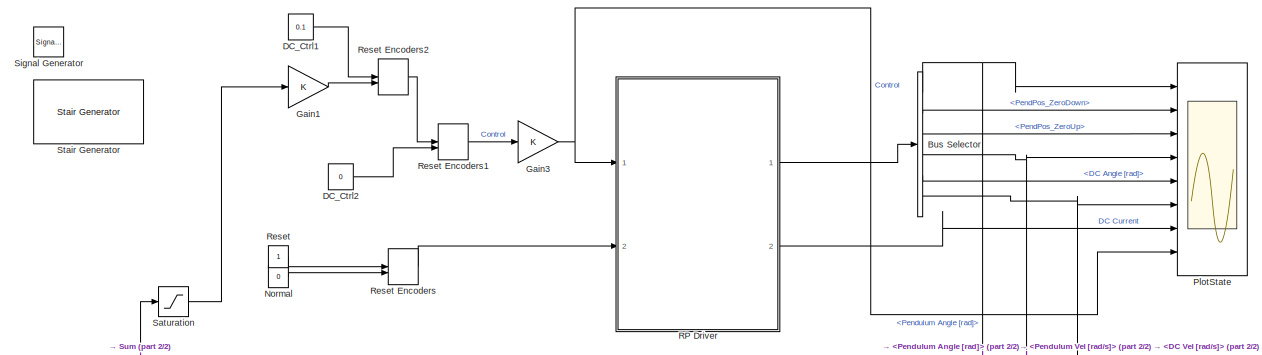
[diagram: root canvas - part 1/2, full width, top band]
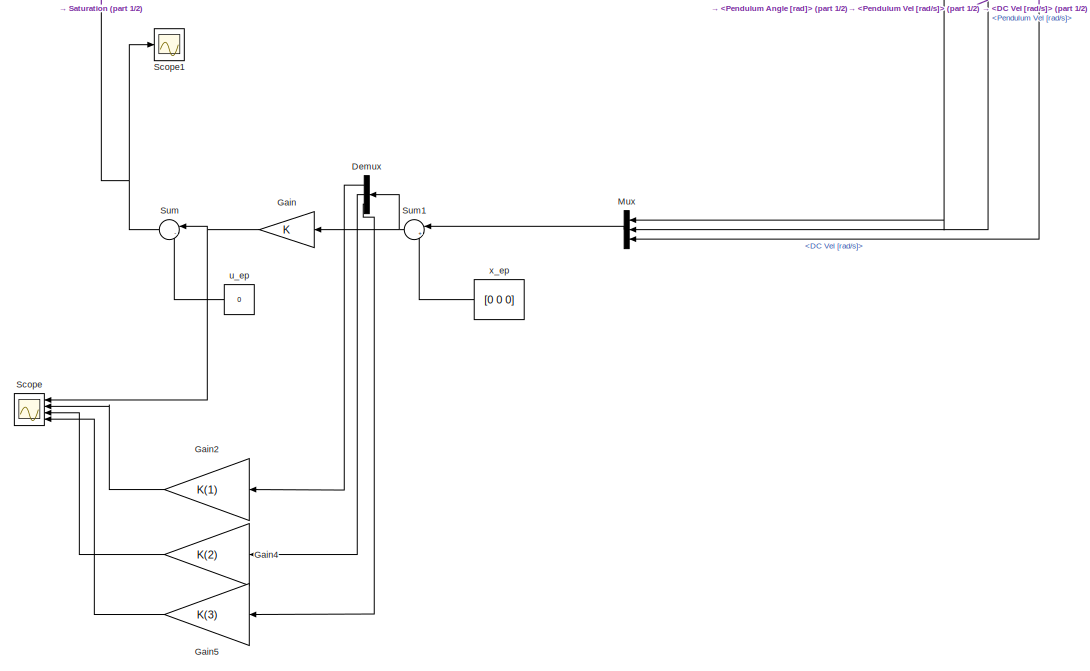
[diagram: root canvas - part 2/2, full width, bottom band]
MODEL slx_e11b59d780dd
KIND model
CONFIG AbsTol = auto
CONFIG EnableMultiTasking = on
CONFIG FixedStep = 0.01
CONFIG MaxStep = auto
CONFIG MinStep = auto
CONFIG RelTol = 1e-3
CONFIG SampleTimeConstraint = Unconstrained
CONFIG Solver = FixedStepDiscrete
CONFIG SolverName = FixedStepDiscrete
CONFIG StartTime = 0.0
CONFIG StopTime = 999
BLOCK [BusSelector] Bus Selector
  OutputAsBus = off
  OutputSignals = Pendulum Angle [rad],PendPos_ZeroDown,PendPos_ZeroUp,Pendulum Vel [rad/s],DC Angle [rad],DC Vel [rad/s]
  Ports = [1, 6]
BLOCK [Constant] DC_Ctrl1
  Value = 0.1
BLOCK [Constant] DC_Ctrl2
  Value = 0
BLOCK [Demux] Demux
  DisplayOption = bar
  Outputs = 3
  Ports = [1, 3]
BLOCK [Gain] Gain
  Gain = K
  Multiplication = Matrix(K*u) (u vector)
  OutDataTypeStr = Inherit: Inherit via internal rule
  ParamDataTypeStr = Inherit: Inherit via internal rule
  SaturateOnIntegerOverflow = off
BLOCK [Gain] Gain1
  OutDataTypeStr = Inherit: Inherit via internal rule
  ParamDataTypeStr = Inherit: Inherit via internal rule
  SaturateOnIntegerOverflow = off
BLOCK [Gain] Gain2
  Gain = K(1)
  OutDataTypeStr = Inherit: Inherit via internal rule
  ParamDataTypeStr = Inherit: Inherit via internal rule
  SaturateOnIntegerOverflow = off
BLOCK [Gain] Gain3
  OutDataTypeStr = Inherit: Inherit via internal rule
  ParamDataTypeStr = Inherit: Inherit via internal rule
  SaturateOnIntegerOverflow = off
BLOCK [Gain] Gain4
  Gain = K(2)
  OutDataTypeStr = Inherit: Inherit via internal rule
  ParamDataTypeStr = Inherit: Inherit via internal rule
  SaturateOnIntegerOverflow = off
BLOCK [Gain] Gain5
  Gain = K(3)
  OutDataTypeStr = Inherit: Inherit via internal rule
  ParamDataTypeStr = Inherit: Inherit via internal rule
  SaturateOnIntegerOverflow = off
BLOCK [Mux] Mux
  DisplayOption = bar
  Inputs = 3
  Ports = [3, 1]
BLOCK [Constant] Normal
  Value = 0
BLOCK [Scope] PlotState
  Floating = off
  NumInputPorts = 8
  Ports = [8]
  ScopeSpecificationString = Simulink.scopes.TimeScopeBlockCfg('CurrentConfiguration', extmgr.ConfigurationSet(extmgr.Configuration('Core','General UI',true),extmgr.Configuration('Core','Source UI',true),extmgr.Configuration('Sources','WiredSimulink',true,'DataLoggingVariableName','test6_wahadlo_pionowe','DataLoggingSaveFormat','StructureWithTime','DataLoggingMaxPoints','12000','DataLoggingDecimation','1','DataLoggingDecimate...<+5769ch>
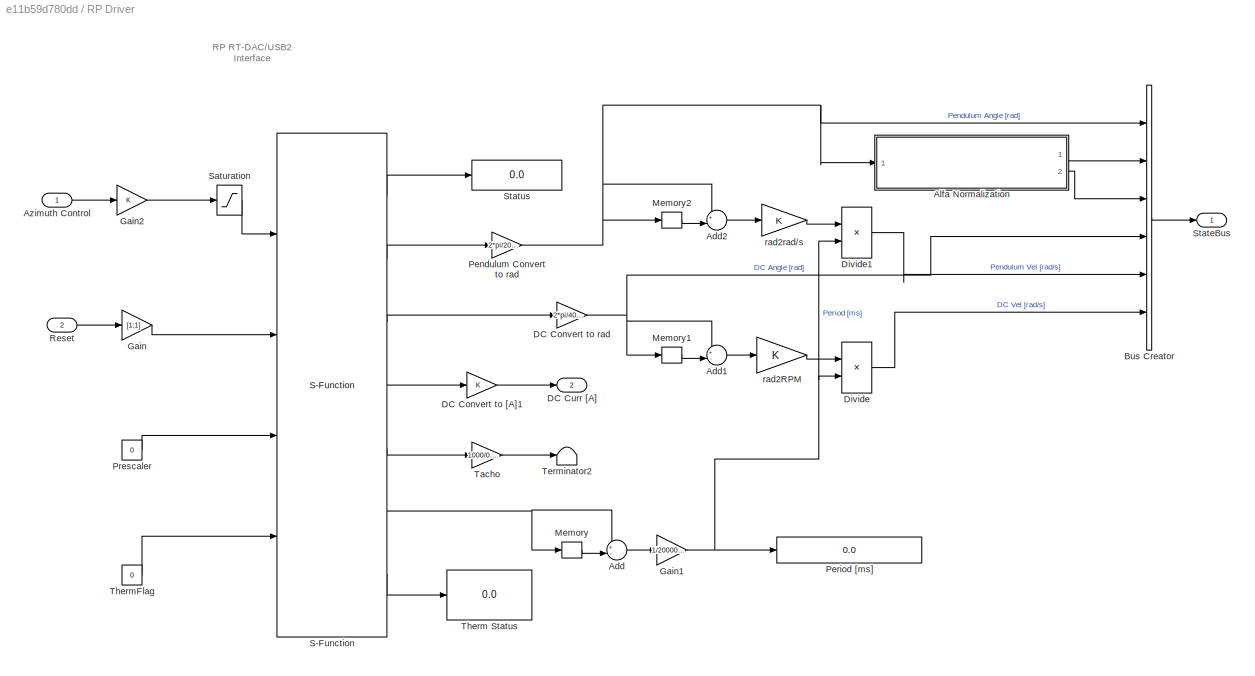
BLOCK [SubSystem] RP Driver
  Ports = [2, 2]
  RequestExecContextInheritance = off
BLOCK [Sum] RP Driver/Add
  IconShape = round
  InputSameDT = off
  Inputs = +-|
  OutDataTypeStr = Inherit: Inherit via internal rule
  Ports = [2, 1]
  SaturateOnIntegerOverflow = off
BLOCK [Sum] RP Driver/Add1
  IconShape = round
  InputSameDT = off
  Inputs = +-|
  OutDataTypeStr = Inherit: Inherit via internal rule
  Ports = [2, 1]
  SaturateOnIntegerOverflow = off
BLOCK [Sum] RP Driver/Add2
  IconShape = round
  InputSameDT = off
  Inputs = +-|
  OutDataTypeStr = Inherit: Inherit via internal rule
  Ports = [2, 1]
  SaturateOnIntegerOverflow = off
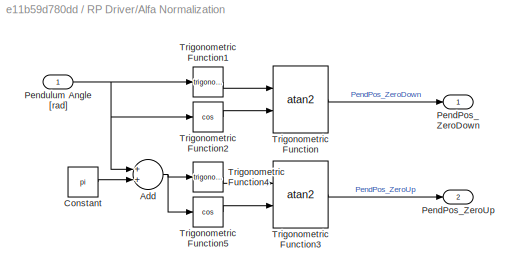
BLOCK [SubSystem] RP Driver/Alfa Normalization
  Ports = [1, 2]
  RequestExecContextInheritance = off
BLOCK [Sum] RP Driver/Alfa Normalization/Add
  InputSameDT = off
  OutDataTypeStr = Inherit: Inherit via internal rule
  Ports = [2, 1]
  SaturateOnIntegerOverflow = off
BLOCK [Constant] RP Driver/Alfa Normalization/Constant
  Value = pi
BLOCK [Outport] RP Driver/Alfa Normalization/PendPos_ZeroDown
  IconDisplay = Port number
BLOCK [Outport] RP Driver/Alfa Normalization/PendPos_ZeroUp
  IconDisplay = Port number
  Port = 2
BLOCK [Inport] RP Driver/Alfa Normalization/Pendulum Angle [rad]
  IconDisplay = Port number
BLOCK [Trigonometry] RP Driver/Alfa Normalization/Trigonometric Function
  Operator = atan2
  Ports = [2, 1]
BLOCK [Trigonometry] RP Driver/Alfa Normalization/Trigonometric Function1
  Ports = [1, 1]
BLOCK [Trigonometry] RP Driver/Alfa Normalization/Trigonometric Function2
  Operator = cos
  Ports = [1, 1]
BLOCK [Trigonometry] RP Driver/Alfa Normalization/Trigonometric Function3
  Operator = atan2
  Ports = [2, 1]
BLOCK [Trigonometry] RP Driver/Alfa Normalization/Trigonometric Function4
  Ports = [1, 1]
BLOCK [Trigonometry] RP Driver/Alfa Normalization/Trigonometric Function5
  Operator = cos
  Ports = [1, 1]
BLOCK [Inport] RP Driver/Azimuth Control
  IconDisplay = Port number
BLOCK [BusCreator] RP Driver/Bus Creator
  DisplayOption = bar
  InheritFromInputs = on
  Inputs = 6
  Ports = [6, 1]
BLOCK [Gain] RP Driver/DC Convert to [A]1
BLOCK [Gain] RP Driver/DC Convert to rad
  Gain = 2*pi/4096
BLOCK [Outport] RP Driver/DC Curr [A]
  IconDisplay = Port number
  Port = 2
BLOCK [Product] RP Driver/Divide
  InputSameDT = off
  Inputs = */
  OutDataTypeStr = Inherit: Inherit via internal rule
  Ports = [2, 1]
  RndMeth = Floor
  SaturateOnIntegerOverflow = off
BLOCK [Product] RP Driver/Divide1
  InputSameDT = off
  Inputs = */
  OutDataTypeStr = Inherit: Inherit via internal rule
  Ports = [2, 1]
  RndMeth = Floor
  SaturateOnIntegerOverflow = off
BLOCK [Gain] RP Driver/Gain
  Gain = [1;1]
  OutDataTypeStr = Inherit: Inherit via internal rule
  ParamDataTypeStr = Inherit: Inherit via internal rule
  SaturateOnIntegerOverflow = off
BLOCK [Gain] RP Driver/Gain1
  Gain = 1/20000000
  OutDataTypeStr = Inherit: Inherit via internal rule
  ParamDataTypeStr = Inherit: Inherit via internal rule
  SaturateOnIntegerOverflow = off
BLOCK [Gain] RP Driver/Gain2
  OutDataTypeStr = Inherit: Inherit via internal rule
  ParamDataTypeStr = Inherit: Inherit via internal rule
  SaturateOnIntegerOverflow = off
BLOCK [Memory] RP Driver/Memory
BLOCK [Memory] RP Driver/Memory1
BLOCK [Memory] RP Driver/Memory2
BLOCK [Gain] RP Driver/Pendulum Convert to rad
  Gain = 2*pi/20000
BLOCK [Display] RP Driver/Period [ms]
  Decimation = 1
  Format = long
  Ports = [1]
BLOCK [Constant] RP Driver/Prescaler
  Value = 0
BLOCK [Inport] RP Driver/Reset
  IconDisplay = Port number
  Port = 2
BLOCK [S-Function] RP Driver/S-Function
  EnableBusSupport = off
  FunctionName = rtdacusb2_rpend_dd
  Parameters = 1, 0.01
  Ports = [4, 7]
  SFcnIsStateOwnerBlock = off
  SFunctionDeploymentMode = off
BLOCK [Saturate] RP Driver/Saturation
  InputPortMap = u0
  LowerLimit = -1
  Ports = [1, 1]
  UpperLimit = 1
BLOCK [Outport] RP Driver/StateBus
  IconDisplay = Port number
BLOCK [Display] RP Driver/Status
  Decimation = 1
  Ports = [1]
BLOCK [Gain] RP Driver/Tacho
  Gain = 1000/0.52
BLOCK [Terminator] RP Driver/Terminator2
BLOCK [Display] RP Driver/Therm Status
  Decimation = 1
  Ports = [1]
BLOCK [Constant] RP Driver/ThermFlag
  Value = 0
BLOCK [Gain] RP Driver/rad2RPM
BLOCK [Gain] RP Driver/rad2rad//s
BLOCK [Constant] Reset
BLOCK [ManualSwitch] Reset Encoders
  CurrentSetting = 0
BLOCK [ManualSwitch] Reset Encoders1
BLOCK [ManualSwitch] Reset Encoders2
  CurrentSetting = 0
BLOCK [Saturate] Saturation
  InputPortMap = u0
  LowerLimit = -0.9
  Ports = [1, 1]
  UpperLimit = 0.9
BLOCK [Scope] Scope
  Floating = off
  NumInputPorts = 4
  Ports = [4]
  ScopeSpecificationString = Simulink.scopes.TimeScopeBlockCfg('CurrentConfiguration', extmgr.ConfigurationSet(extmgr.Configuration('Core','General UI',true),extmgr.Configuration('Core','Source UI',true),extmgr.Configuration('Sources','WiredSimulink',true,'DataLoggingVariableName','test_6_wahadlo_pionowe','DataLogging',true,'DataLoggingSaveFormat','StructureWithTime'),extmgr.Configuration('Visuals','Time Domain',true,'Seriali...<+3505ch>
BLOCK [Scope] Scope1
  Floating = off
  NumInputPorts = 1
  Ports = [1]
  ScopeSpecificationString = Simulink.scopes.TimeScopeBlockCfg('CurrentConfiguration', extmgr.ConfigurationSet(extmgr.Configuration('Core','General UI',true),extmgr.Configuration('Core','Source UI',true),extmgr.Configuration('Sources','WiredSimulink',true,'DataLoggingVariableName','ScopeData2'),extmgr.Configuration('Visuals','Time Domain',true,'SerializedDisplays',{struct('MinYLimReal','-10142.089','MaxYLimReal','1158.57533',...<+1436ch>
BLOCK [SignalGenerator] Signal Generator
  Amplitude = 0.25
  Frequency = 1/9
  Ports = [0, 1]
  WaveForm = square
BLOCK [Reference] Stair Generator  REF=powerlib_meascontrol/Pulse & Signal
Generators/Stair
Generator
  Commented = on
  Ports = [0, 1]
  SourceBlock = powerlib_meascontrol/Pulse & Signal\nGenerators/Stair\nGenerator
  SourceProductBaseCode = PS
  SourceType = Stair Generator
BLOCK [Sum] Sum
  IconShape = round
  InputSameDT = off
  Inputs = |-+
  OutDataTypeStr = Inherit: Inherit via internal rule
  Ports = [2, 1]
  SaturateOnIntegerOverflow = off
BLOCK [Sum] Sum1
  IconShape = round
  InputSameDT = off
  Inputs = |+-
  OutDataTypeStr = Inherit: Inherit via internal rule
  Ports = [2, 1]
  SaturateOnIntegerOverflow = off
BLOCK [Constant] u_ep
  Value = 0
BLOCK [Constant] x_ep
  Value = [0 0 0]
ANNOTATION RP Driver: RP RT-DAC/USB2 Interface
NET Bus Selector:1 -> Mux:1, PlotState:1
LINE Bus Selector:2 -> PlotState:2
LINE Bus Selector:3 -> PlotState:3
NET Bus Selector:4 -> Mux:2, PlotState:4
LINE Bus Selector:5 -> PlotState:5
NET Bus Selector:6 -> Mux:3, PlotState:6
LINE DC_Ctrl1:1 -> Reset Encoders2:1
LINE DC_Ctrl2:1 -> Reset Encoders1:2
LINE Demux:1 -> Gain2:1
LINE Demux:2 -> Gain4:1
LINE Demux:3 -> Gain5:1
LINE Gain1:1 -> Reset Encoders2:2
LINE Gain2:1 -> Scope:2
NET Gain3:1 -> PlotState:8, RP Driver:1
LINE Gain4:1 -> Scope:3
LINE Gain5:1 -> Scope:4
NET Gain:1 -> Scope:1, Sum:1
LINE Mux:1 -> Sum1:1
LINE Normal:1 -> Reset Encoders:2
LINE RP Driver/Add1:1 -> RP Driver/rad2RPM:1
LINE RP Driver/Add2:1 -> RP Driver/rad2rad//s:1
LINE RP Driver/Add:1 -> RP Driver/Gain1:1
NET RP Driver/Alfa Normalization/Add:1 -> RP Driver/Alfa Normalization/Trigonometric Function4:1, RP Driver/Alfa Normalization/Trigonometric Function5:1
LINE RP Driver/Alfa Normalization/Constant:1 -> RP Driver/Alfa Normalization/Add:2
NET RP Driver/Alfa Normalization/Pendulum Angle [rad]:1 -> RP Driver/Alfa Normalization/Add:1, RP Driver/Alfa Normalization/Trigonometric Function1:1, RP Driver/Alfa Normalization/Trigonometric Function2:1
LINE RP Driver/Alfa Normalization/Trigonometric Function1:1 -> RP Driver/Alfa Normalization/Trigonometric Function:1
LINE RP Driver/Alfa Normalization/Trigonometric Function2:1 -> RP Driver/Alfa Normalization/Trigonometric Function:2
LINE RP Driver/Alfa Normalization/Trigonometric Function3:1 -> RP Driver/Alfa Normalization/PendPos_ZeroUp:1
LINE RP Driver/Alfa Normalization/Trigonometric Function4:1 -> RP Driver/Alfa Normalization/Trigonometric Function3:1
LINE RP Driver/Alfa Normalization/Trigonometric Function5:1 -> RP Driver/Alfa Normalization/Trigonometric Function3:2
LINE RP Driver/Alfa Normalization/Trigonometric Function:1 -> RP Driver/Alfa Normalization/PendPos_ZeroDown:1
LINE RP Driver/Alfa Normalization:1 -> RP Driver/Bus Creator:2
LINE RP Driver/Alfa Normalization:2 -> RP Driver/Bus Creator:3
LINE RP Driver/Azimuth Control:1 -> RP Driver/Gain2:1
LINE RP Driver/Bus Creator:1 -> RP Driver/StateBus:1
LINE RP Driver/DC Convert to [A]1:1 -> RP Driver/DC Curr [A]:1
NET RP Driver/DC Convert to rad:1 -> RP Driver/Add1:1, RP Driver/Bus Creator:4, RP Driver/Memory1:1
LINE RP Driver/Divide1:1 -> RP Driver/Bus Creator:5
LINE RP Driver/Divide:1 -> RP Driver/Bus Creator:6
NET RP Driver/Gain1:1 -> RP Driver/Divide1:2, RP Driver/Divide:2, RP Driver/Period [ms]:1
LINE RP Driver/Gain2:1 -> RP Driver/Saturation:1
LINE RP Driver/Gain:1 -> RP Driver/S-Function:2
LINE RP Driver/Memory1:1 -> RP Driver/Add1:2
LINE RP Driver/Memory2:1 -> RP Driver/Add2:2
LINE RP Driver/Memory:1 -> RP Driver/Add:2
NET RP Driver/Pendulum Convert to rad:1 -> RP Driver/Add2:1, RP Driver/Alfa Normalization:1, RP Driver/Bus Creator:1, RP Driver/Memory2:1
LINE RP Driver/Prescaler:1 -> RP Driver/S-Function:3
LINE RP Driver/Reset:1 -> RP Driver/Gain:1
LINE RP Driver/S-Function:1 -> RP Driver/Status:1
LINE RP Driver/S-Function:2 -> RP Driver/Pendulum Convert to rad:1
LINE RP Driver/S-Function:3 -> RP Driver/DC Convert to rad:1
LINE RP Driver/S-Function:4 -> RP Driver/DC Convert to [A]1:1
LINE RP Driver/S-Function:5 -> RP Driver/Tacho:1
NET RP Driver/S-Function:6 -> RP Driver/Add:1, RP Driver/Memory:1
LINE RP Driver/S-Function:7 -> RP Driver/Therm Status:1
LINE RP Driver/Saturation:1 -> RP Driver/S-Function:1
LINE RP Driver/Tacho:1 -> RP Driver/Terminator2:1
LINE RP Driver/ThermFlag:1 -> RP Driver/S-Function:4
LINE RP Driver/rad2RPM:1 -> RP Driver/Divide:1
LINE RP Driver/rad2rad//s:1 -> RP Driver/Divide1:1
LINE RP Driver:1 -> Bus Selector:1
LINE RP Driver:2 -> PlotState:7
LINE Reset Encoders1:1 -> Gain3:1
LINE Reset Encoders2:1 -> Reset Encoders1:1
LINE Reset Encoders:1 -> RP Driver:2
LINE Reset:1 -> Reset Encoders:1
LINE Saturation:1 -> Gain1:1
NET Sum1:1 -> Demux:1, Gain:1
NET Sum:1 -> Saturation:1, Scope1:1
LINE u_ep:1 -> Sum:2
LINE x_ep:1 -> Sum1:2
note: NET lines group one-source signal fan-out (src -> all destinations, sorted); 1:1 wires keep LINE
